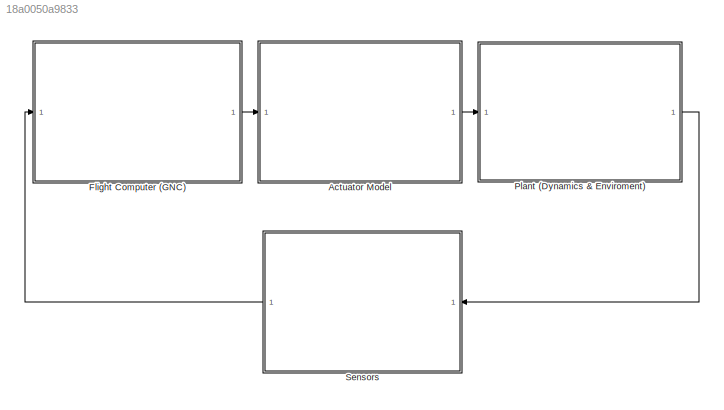
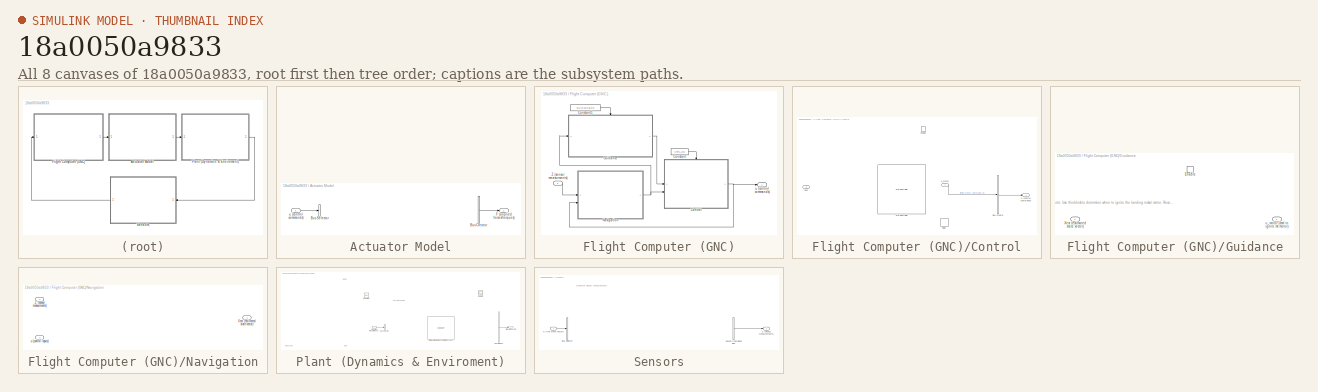
[diagram: thumbnail index - all 8 canvases of the model, root first then tree order]
MODEL slx_18a0050a9833
KIND model
CONFIG AbsTol = auto
CONFIG EnableMultiTasking = off
CONFIG FixedStep = dt
CONFIG InitFcn = TVCrocketSim_6DOF_INIT
CONFIG MaxStep = auto
CONFIG MinStep = auto
CONFIG RelTol = 1e-6
CONFIG SampleTimeConstraint = Unconstrained
CONFIG SolverName = VariableStepAuto
CONFIG StartTime = 0.0
CONFIG StopFcn = TVCrocketSim_6DOF_POST
CONFIG StopTime = MAX_SIM_TIME
BLOCK [SubSystem] Actuator Model
BLOCK [BusCreator] Actuator Model/Bus Creator
  DisplayOption = bar
  InheritFromInputs = on
  Inputs = 2
BLOCK [BusSelector] Actuator Model/Bus Selector
  OutputSignals = ignite motor command (binary),commanded servo angle
BLOCK [Outport] Actuator Model/F (applied forces//torques)
  VectorParamsAs1DForOutWhenUnconnected = off
BLOCK [Inport] Actuator Model/u (control commands)
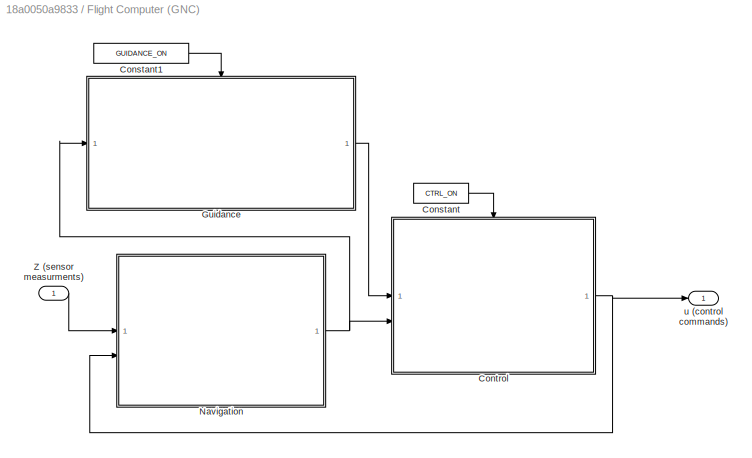
BLOCK [SubSystem] Flight Computer (GNC)
BLOCK [Constant] Flight Computer (GNC)/Constant
  Value = CTRL_ON
BLOCK [Constant] Flight Computer (GNC)/Constant1
  Value = GUIDANCE_ON
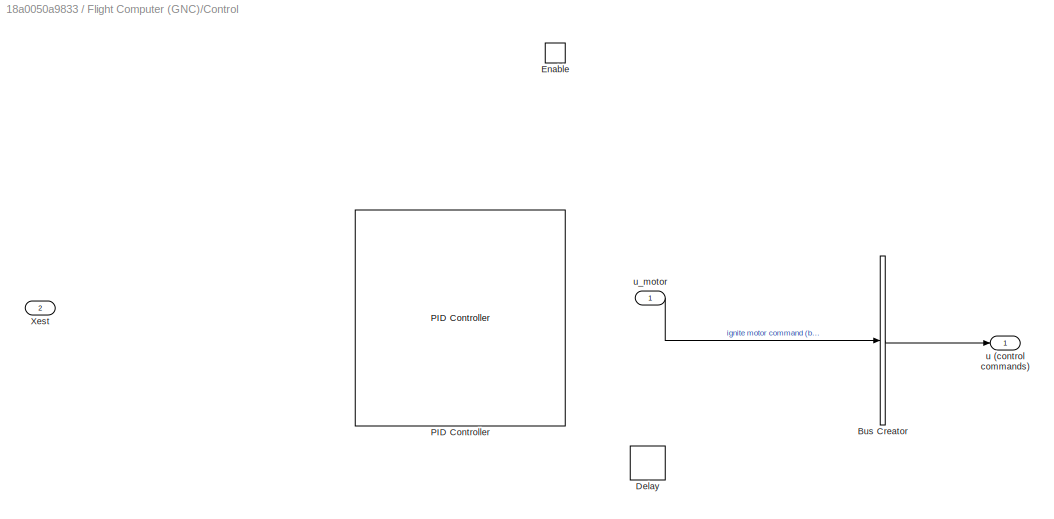
BLOCK [SubSystem] Flight Computer (GNC)/Control
BLOCK [BusCreator] Flight Computer (GNC)/Control/Bus Creator
  DisplayOption = bar
  InheritFromInputs = on
  Inputs = 2
BLOCK [Delay] Flight Computer (GNC)/Control/Delay
  InputPortMap = u0
  SampleTime = .01
BLOCK [EnablePort] Flight Computer (GNC)/Control/Enable
BLOCK [Reference] Flight Computer (GNC)/Control/PID Controller  REF=slpidlib/PID Controller
  LibrarySourceBlock = simulink/Continuous/PID Controller
  SourceBlock = slpidlib/PID Controller
  SourceType = PID 1dof
BLOCK [Inport] Flight Computer (GNC)/Control/Xest 
  Port = 2
BLOCK [Outport] Flight Computer (GNC)/Control/u (control commands)
BLOCK [Inport] Flight Computer (GNC)/Control/u_motor
BLOCK [SubSystem] Flight Computer (GNC)/Guidance
BLOCK [EnablePort] Flight Computer (GNC)/Guidance/Enable
BLOCK [Inport] Flight Computer (GNC)/Guidance/Xest (estimated state vector)
BLOCK [Outport] Flight Computer (GNC)/Guidance/u_motor (cmd to ignite rkt motor)
  VectorParamsAs1DForOutWhenUnconnected = off
BLOCK [SubSystem] Flight Computer (GNC)/Navigation
BLOCK [Outport] Flight Computer (GNC)/Navigation/Xest (estimated state vector)
  VectorParamsAs1DForOutWhenUnconnected = off
BLOCK [Inport] Flight Computer (GNC)/Navigation/Z (sensor measurments)
BLOCK [Inport] Flight Computer (GNC)/Navigation/u (control inputs)
  Port = 2
BLOCK [Inport] Flight Computer (GNC)/Z (sensor measurments)
BLOCK [Outport] Flight Computer (GNC)/u (control commands)
  VectorParamsAs1DForOutWhenUnconnected = off
BLOCK [SubSystem] Plant (Dynamics & Enviroment)
BLOCK [BusSelector] Plant (Dynamics & Enviroment)/Bus Selector
  OutputSignals = F_thrust (motor thrust vector),Tau_thrust (Torque applied by rocket motor about body CoM)
BLOCK [Constant] Plant (Dynamics & Enviroment)/Constant
  Value = 9.81
BLOCK [Inport] Plant (Dynamics & Enviroment)/F (applied forces//torques)
  VarSizeSig = No
BLOCK [Scope] Plant (Dynamics & Enviroment)/Scope
  Floating = off
  NumInputPorts = 1
  ScopeSpecificationString = Simulink.scopes.TimeScopeBlockCfg('CurrentConfiguration', extmgr.ConfigurationSet(extmgr.Configuration('Core','General UI',true),extmgr.Configuration('Core','Source UI',true),extmgr.Configuration('Sources','WiredSimulink',true),extmgr.Configuration('Visuals','Time Domain',true),extmgr.Configuration('Tools','Plot Navigation',true),extmgr.Configuration('Tools','Measurements',true)),'Version','2022b'...<+1ch>
BLOCK [EOM3DOF] Plant (Dynamics & Enviroment)/Simple Variable Mass 3dof (Body Axes)
  mtype = Simple Variable
BLOCK [BusCreator] Plant (Dynamics & Enviroment)/True State Bus
  DisplayOption = bar
  InheritFromInputs = on
  Inputs = 5
BLOCK [Outport] Plant (Dynamics & Enviroment)/X (true state vector)
  VectorParamsAs1DForOutWhenUnconnected = off
BLOCK [SubSystem] Sensors
BLOCK [BusSelector] Sensors/Bus Selector
  OutputSignals = x_n_nb (true postion in navigation frame),w_n_bn (angular velocity of body WRT nav frame),xDotDot_n_nb (true acceleration in navigation frame)
BLOCK [BusCreator] Sensors/Sensors Combined Bus
  DisplayOption = bar
  InheritFromInputs = on
  Inputs = 3
BLOCK [Inport] Sensors/X (true state vector)
BLOCK [Outport] Sensors/Z (sensor measurements)
ANNOTATION Flight Computer (GNC)/Guidance: Note: Use this block to determine when to ignite the landing rocket motor. Recommend output is a binary command to light motor or not (0 - do not ignite motor, 1 - ignite motor)
ANNOTATION Plant (Dynamics & Enviroment): Atmosphere
ANNOTATION Plant (Dynamics & Enviroment): Drag
ANNOTATION Plant (Dynamics & Enviroment): Gravity
ANNOTATION Plant (Dynamics & Enviroment): Rocket Dynamics
ANNOTATION Sensors: Generate Sensor Measurements
LINE Actuator Model/Bus Creator:1 -> Actuator Model/F (applied forces//torques):1
LINE Actuator Model/u (control commands):1 -> Actuator Model/Bus Selector:1
LINE Actuator Model:1 -> Plant (Dynamics & Enviroment):1
LINE Flight Computer (GNC)/Constant1:1 -> Flight Computer (GNC)/Guidance:enable
LINE Flight Computer (GNC)/Constant:1 -> Flight Computer (GNC)/Control:enable
LINE Flight Computer (GNC)/Control/Bus Creator:1 -> Flight Computer (GNC)/Control/u (control commands):1
LINE Flight Computer (GNC)/Control/u_motor:1 -> Flight Computer (GNC)/Control/Bus Creator:1
NET Flight Computer (GNC)/Control:1 -> Flight Computer (GNC)/Navigation:2, Flight Computer (GNC)/u (control commands):1
LINE Flight Computer (GNC)/Guidance:1 -> Flight Computer (GNC)/Control:1
NET Flight Computer (GNC)/Navigation:1 -> Flight Computer (GNC)/Control:2, Flight Computer (GNC)/Guidance:1
LINE Flight Computer (GNC)/Z (sensor measurments):1 -> Flight Computer (GNC)/Navigation:1
LINE Flight Computer (GNC):1 -> Actuator Model:1
LINE Plant (Dynamics & Enviroment)/F (applied forces//torques):1 -> Plant (Dynamics & Enviroment)/Bus Selector:1
LINE Plant (Dynamics & Enviroment)/True State Bus:1 -> Plant (Dynamics & Enviroment)/X (true state vector):1
LINE Plant (Dynamics & Enviroment):1 -> Sensors:1
LINE Sensors/Sensors Combined Bus:1 -> Sensors/Z (sensor measurements):1
LINE Sensors/X (true state vector):1 -> Sensors/Bus Selector:1
LINE Sensors:1 -> Flight Computer (GNC):1
note: NET lines group one-source signal fan-out (src -> all destinations, sorted); 1:1 wires keep LINE
